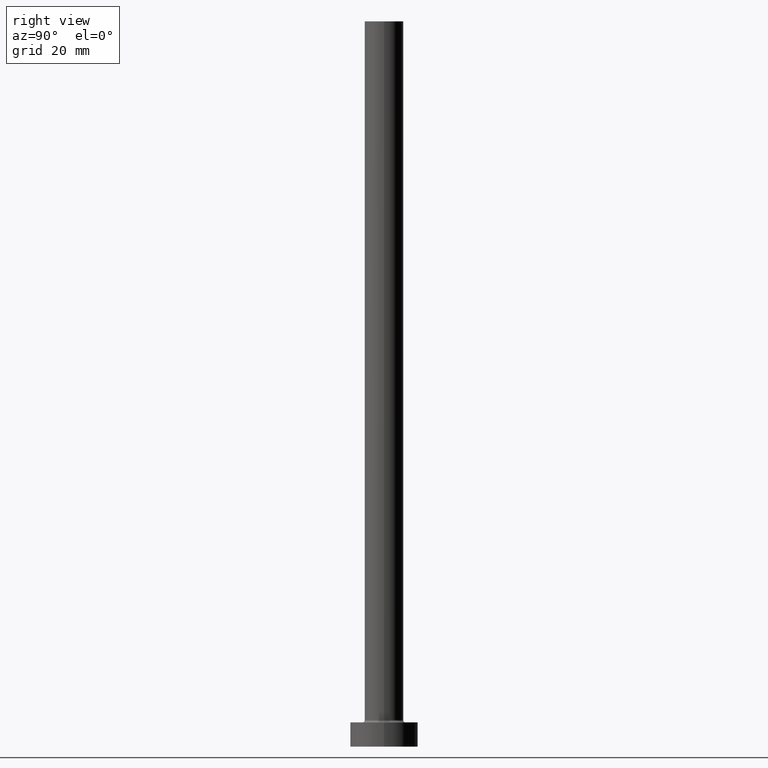
[diagram: clean part render]
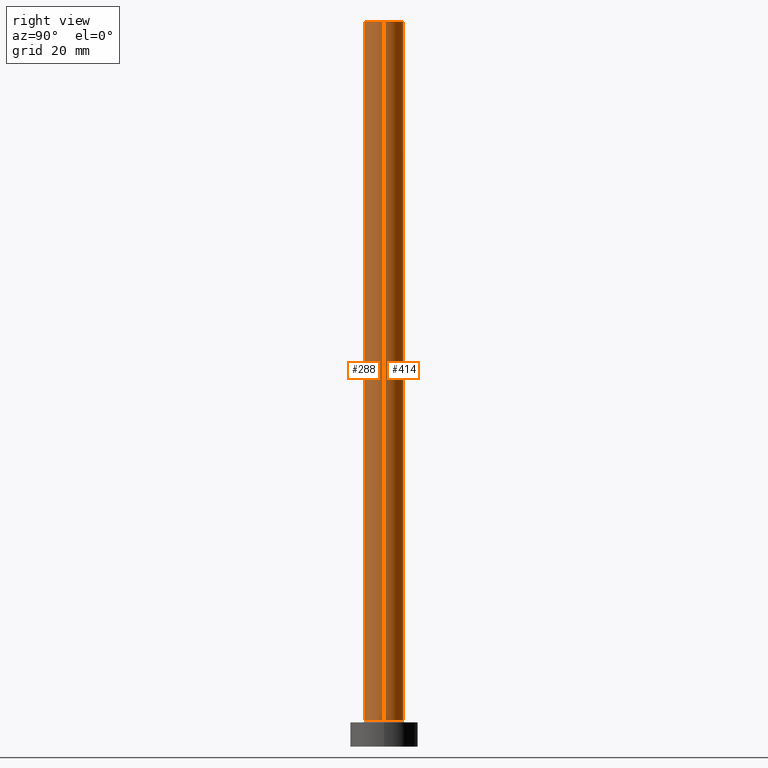
[diagram: same view with one multi-face feature highlighted, each face labeled with its STEP entity id]
A machine part, right view. The highlighted faces form ONE feature: a constant-radius fillet chain: 2 tangent blend faces with common blend radius 4 mm. The faces share edges in the B-rep.
Their STEP definitions:
[1] entity #288 (Cylinder):
#5 = DIRECTION ( 'NONE',  ( 1.000000000000000000, 0.000000000000000000, 0.000000000000000000 ) ) ;
#9 = CARTESIAN_POINT ( 'NONE',  ( 0.000000000000000000, 0.000000000000000000, 150.0000000000000000 ) ) ;
#25 = CIRCLE ( 'NONE', #57, 4.000000000000000000 ) ;
#35 = CARTESIAN_POINT ( 'NONE',  ( -4.000000000000000000, 0.000000000000000000, 5.500000000000005329 ) ) ;
#52 = DIRECTION ( 'NONE',  ( -0.000000000000000000, -0.000000000000000000, -1.000000000000000000 ) ) ;
#57 = AXIS2_PLACEMENT_3D ( 'NONE', #214, #179, #5 ) ;
#61 = VERTEX_POINT ( 'NONE', #93 ) ;
#73 = VERTEX_POINT ( 'NONE', #84 ) ;
#84 = CARTESIAN_POINT ( 'NONE',  ( -4.000000000000000000, 0.000000000000000000, 150.0000000000000000 ) ) ;
#89 = VECTOR ( 'NONE', #123, 1000.000000000000000 ) ;
#93 = CARTESIAN_POINT ( 'NONE',  ( 4.000000000000000000, 4.898587196589412829E-16, 150.0000000000000000 ) ) ;
#118 = DIRECTION ( 'NONE',  ( 0.000000000000000000, 0.000000000000000000, 1.000000000000000000 ) ) ;
#123 = DIRECTION ( 'NONE',  ( -0.000000000000000000, -0.000000000000000000, -1.000000000000000000 ) ) ;
#133 = VERTEX_POINT ( 'NONE', #35 ) ;
#143 = ORIENTED_EDGE ( 'NONE', *, *, #321, .F. ) ;
#145 = CARTESIAN_POINT ( 'NONE',  ( -4.000000000000000000, 0.000000000000000000, 150.0000000000000000 ) ) ;
#155 = DIRECTION ( 'NONE',  ( -0.000000000000000000, -0.000000000000000000, -1.000000000000000000 ) ) ;
#179 = DIRECTION ( 'NONE',  ( 0.000000000000000000, 0.000000000000000000, 1.000000000000000000 ) ) ;
#181 = LINE ( 'NONE', #368, #89 ) ;
#182 = EDGE_CURVE ( 'NONE', #133, #360, #25, .T. ) ;
#199 = EDGE_CURVE ( 'NONE', #73, #61, #282, .T. ) ;
#214 = CARTESIAN_POINT ( 'NONE',  ( 0.000000000000000000, 0.000000000000000000, 5.500000000000005329 ) ) ;
#216 = ORIENTED_EDGE ( 'NONE', *, *, #330, .T. ) ;
#218 = ORIENTED_EDGE ( 'NONE', *, *, #182, .T. ) ;
#227 = FACE_OUTER_BOUND ( 'NONE', #421, .T. ) ;
#254 = CARTESIAN_POINT ( 'NONE',  ( 0.000000000000000000, 0.000000000000000000, 150.0000000000000000 ) ) ;
#281 = DIRECTION ( 'NONE',  ( 1.000000000000000000, 0.000000000000000000, 0.000000000000000000 ) ) ;
#282 = CIRCLE ( 'NONE', #299, 4.000000000000000000 ) ;
#288 = ADVANCED_FACE ( 'NONE', ( #227 ), #374, .T. ) ;
#299 = AXIS2_PLACEMENT_3D ( 'NONE', #9, #118, #281 ) ;
#321 = EDGE_CURVE ( 'NONE', #61, #360, #181, .T. ) ;
#328 = AXIS2_PLACEMENT_3D ( 'NONE', #254, #155, #398 ) ;
#330 = EDGE_CURVE ( 'NONE', #73, #133, #370, .T. ) ;
#355 = ORIENTED_EDGE ( 'NONE', *, *, #199, .F. ) ;
#358 = VECTOR ( 'NONE', #52, 1000.000000000000000 ) ;
#360 = VERTEX_POINT ( 'NONE', #406 ) ;
#368 = CARTESIAN_POINT ( 'NONE',  ( 4.000000000000000000, 4.898587196589412829E-16, 150.0000000000000000 ) ) ;
#370 = LINE ( 'NONE', #145, #358 ) ;
#374 = CYLINDRICAL_SURFACE ( 'NONE', #328, 4.000000000000000000 ) ;
#398 = DIRECTION ( 'NONE',  ( -1.000000000000000000, 0.000000000000000000, 0.000000000000000000 ) ) ;
#406 = CARTESIAN_POINT ( 'NONE',  ( 4.000000000000000000, 4.898587196589412829E-16, 5.500000000000005329 ) ) ;
#421 = EDGE_LOOP ( 'NONE', ( #143, #355, #216, #218 ) ) ;
[2] entity #414 (Cylinder):
#35 = CARTESIAN_POINT ( 'NONE',  ( -4.000000000000000000, 0.000000000000000000, 5.500000000000005329 ) ) ;
#52 = DIRECTION ( 'NONE',  ( -0.000000000000000000, -0.000000000000000000, -1.000000000000000000 ) ) ;
#53 = ORIENTED_EDGE ( 'NONE', *, *, #321, .T. ) ;
#59 = DIRECTION ( 'NONE',  ( -1.000000000000000000, 0.000000000000000000, 0.000000000000000000 ) ) ;
#61 = VERTEX_POINT ( 'NONE', #93 ) ;
#69 = ORIENTED_EDGE ( 'NONE', *, *, #273, .T. ) ;
#73 = VERTEX_POINT ( 'NONE', #84 ) ;
#76 = ORIENTED_EDGE ( 'NONE', *, *, #379, .F. ) ;
#84 = CARTESIAN_POINT ( 'NONE',  ( -4.000000000000000000, 0.000000000000000000, 150.0000000000000000 ) ) ;
#89 = VECTOR ( 'NONE', #123, 1000.000000000000000 ) ;
#93 = CARTESIAN_POINT ( 'NONE',  ( 4.000000000000000000, 4.898587196589412829E-16, 150.0000000000000000 ) ) ;
#123 = DIRECTION ( 'NONE',  ( -0.000000000000000000, -0.000000000000000000, -1.000000000000000000 ) ) ;
#133 = VERTEX_POINT ( 'NONE', #35 ) ;
#145 = CARTESIAN_POINT ( 'NONE',  ( -4.000000000000000000, 0.000000000000000000, 150.0000000000000000 ) ) ;
#181 = LINE ( 'NONE', #368, #89 ) ;
#190 = DIRECTION ( 'NONE',  ( 0.000000000000000000, 0.000000000000000000, 1.000000000000000000 ) ) ;
#203 = ORIENTED_EDGE ( 'NONE', *, *, #330, .F. ) ;
#205 = EDGE_LOOP ( 'NONE', ( #76, #53, #69, #203 ) ) ;
#229 = CIRCLE ( 'NONE', #376, 4.000000000000000000 ) ;
#273 = EDGE_CURVE ( 'NONE', #360, #133, #229, .T. ) ;
#275 = CIRCLE ( 'NONE', #340, 4.000000000000000000 ) ;
#295 = CARTESIAN_POINT ( 'NONE',  ( 0.000000000000000000, 0.000000000000000000, 150.0000000000000000 ) ) ;
#321 = EDGE_CURVE ( 'NONE', #61, #360, #181, .T. ) ;
#330 = EDGE_CURVE ( 'NONE', #73, #133, #370, .T. ) ;
#333 = DIRECTION ( 'NONE',  ( 1.000000000000000000, 0.000000000000000000, 0.000000000000000000 ) ) ;
#339 = DIRECTION ( 'NONE',  ( -0.000000000000000000, -0.000000000000000000, -1.000000000000000000 ) ) ;
#340 = AXIS2_PLACEMENT_3D ( 'NONE', #295, #190, #441 ) ;
#358 = VECTOR ( 'NONE', #52, 1000.000000000000000 ) ;
#360 = VERTEX_POINT ( 'NONE', #406 ) ;
#364 = DIRECTION ( 'NONE',  ( 0.000000000000000000, 0.000000000000000000, 1.000000000000000000 ) ) ;
#368 = CARTESIAN_POINT ( 'NONE',  ( 4.000000000000000000, 4.898587196589412829E-16, 150.0000000000000000 ) ) ;
#370 = LINE ( 'NONE', #145, #358 ) ;
#376 = AXIS2_PLACEMENT_3D ( 'NONE', #401, #364, #333 ) ;
#379 = EDGE_CURVE ( 'NONE', #61, #73, #275, .T. ) ;
#380 = CARTESIAN_POINT ( 'NONE',  ( 0.000000000000000000, 0.000000000000000000, 150.0000000000000000 ) ) ;
#401 = CARTESIAN_POINT ( 'NONE',  ( 0.000000000000000000, 0.000000000000000000, 5.500000000000005329 ) ) ;
#404 = AXIS2_PLACEMENT_3D ( 'NONE', #380, #339, #59 ) ;
#406 = CARTESIAN_POINT ( 'NONE',  ( 4.000000000000000000, 4.898587196589412829E-16, 5.500000000000005329 ) ) ;
#413 = CYLINDRICAL_SURFACE ( 'NONE', #404, 4.000000000000000000 ) ;
#414 = ADVANCED_FACE ( 'NONE', ( #416 ), #413, .T. ) ;
#416 = FACE_OUTER_BOUND ( 'NONE', #205, .T. ) ;
#441 = DIRECTION ( 'NONE',  ( 1.000000000000000000, 0.000000000000000000, 0.000000000000000000 ) ) ;